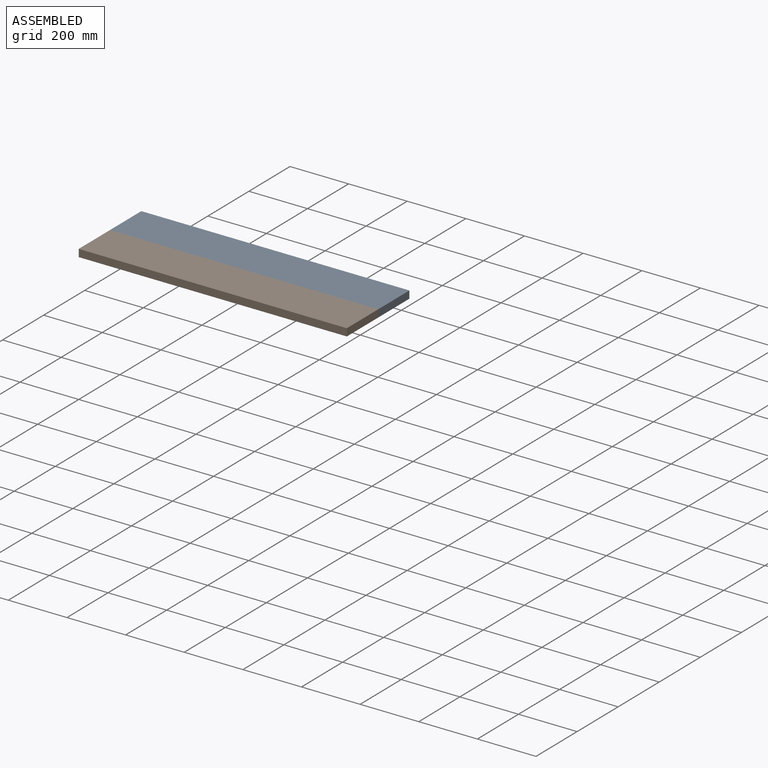
[diagram: assembled view]
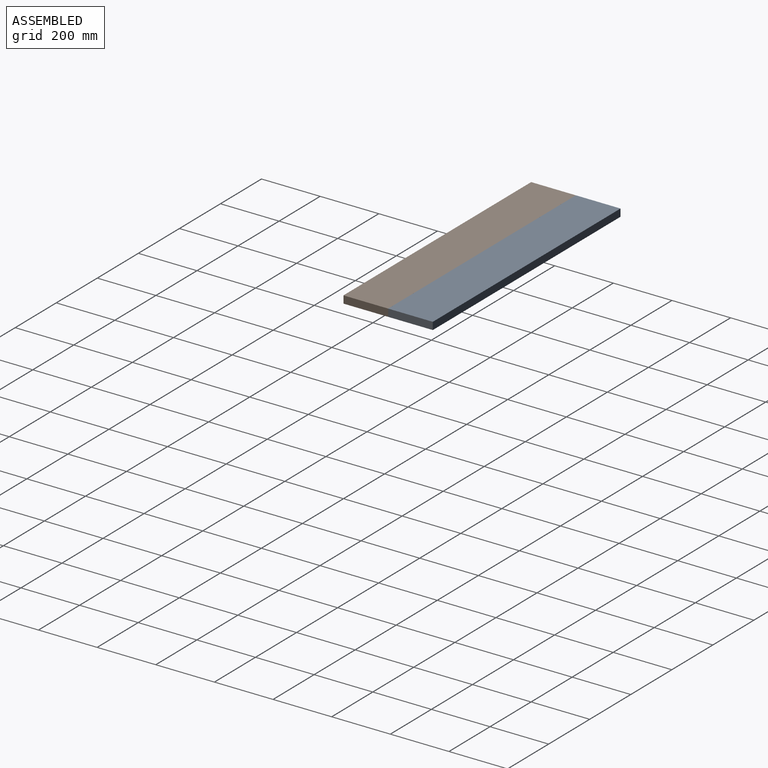
[diagram: assembled view, second angle]
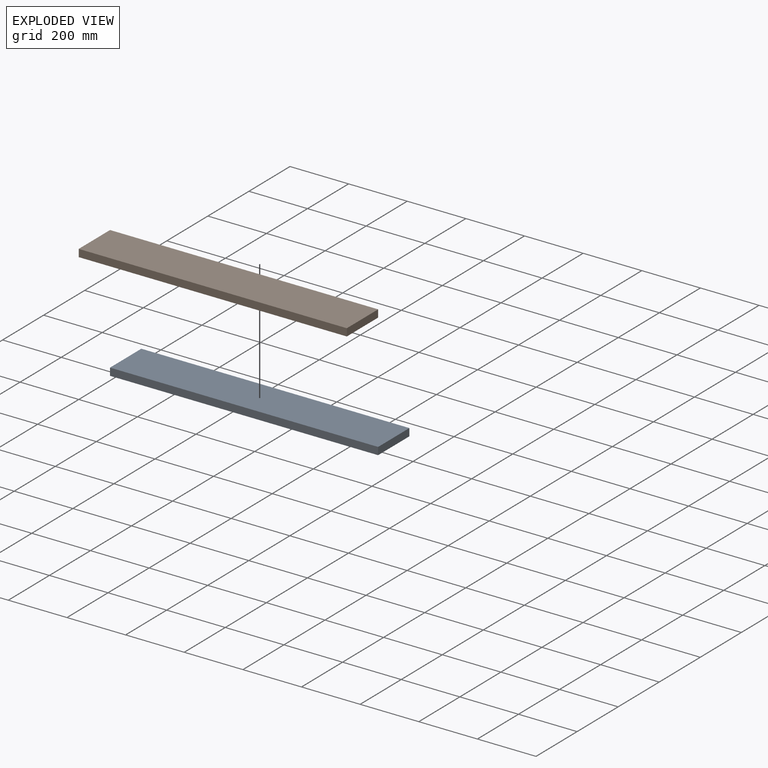
[diagram: exploded view]
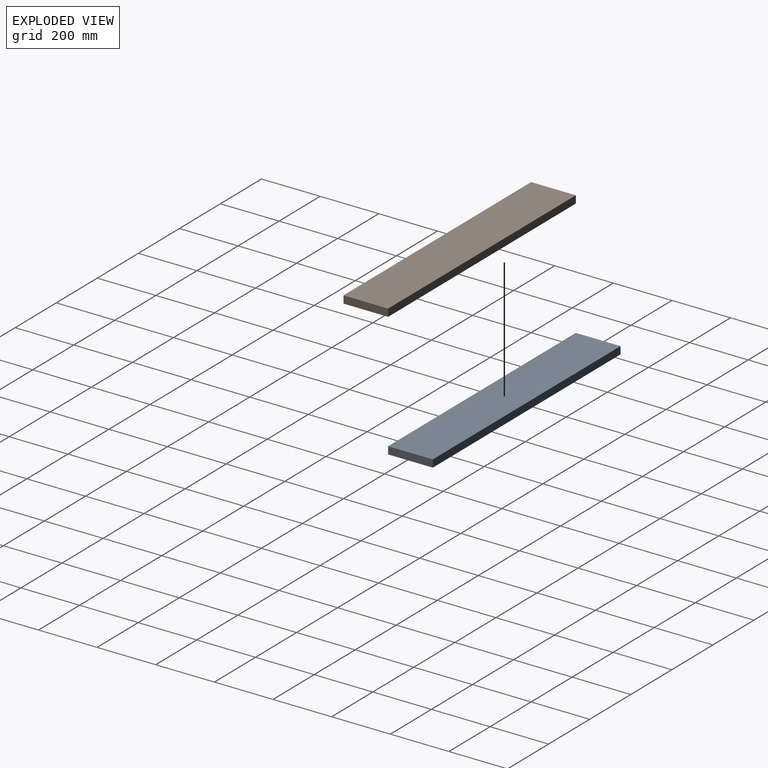
[diagram: exploded view, second angle]
ASSEMBLY  parts=2 mates=3
PART A: 6 faces, bbox 914.4x152.4x25.4 mm
  f0: plane 152.4x25.4mm, normal (-1,0,0), area 3871mm2, adj f1,f3,f4,f5
  f1: plane 914.4x25.4mm, normal (0,-1,0), area 23225.8mm2, adj f0,f2,f4,f5
  f2: plane 152.4x25.4mm, normal (1,0,0), area 3871mm2, adj f1,f3,f4,f5
  f3: plane 914.4x25.4mm, normal (0,1,0), area 23225.8mm2, adj f0,f2,f4,f5
  f4: plane 914.4x152.4mm, normal (0,0,1), area 139354.6mm2, adj f0,f1,f2,f3
  f5: plane 914.4x152.4mm, normal (0,0,-1), area 139354.6mm2, adj f0,f1,f2,f3
PART B: same geometry as A
PLACE A t=(0,152.4,0)mm
PLACE B at identity fixed
MATE planar B.f2 <-> A.f2  axis (1,0,0) through (914.4,76.2,12.7)mm
MATE planar B.f4 <-> A.f4  axis (0,0,1) through (457.2,76.2,25.4)mm
MATE planar B.f3 <-> A.f1  axis (0,1,0) through (457.2,152.4,12.7)mm
